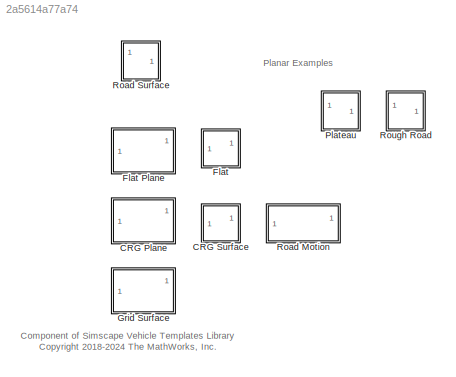
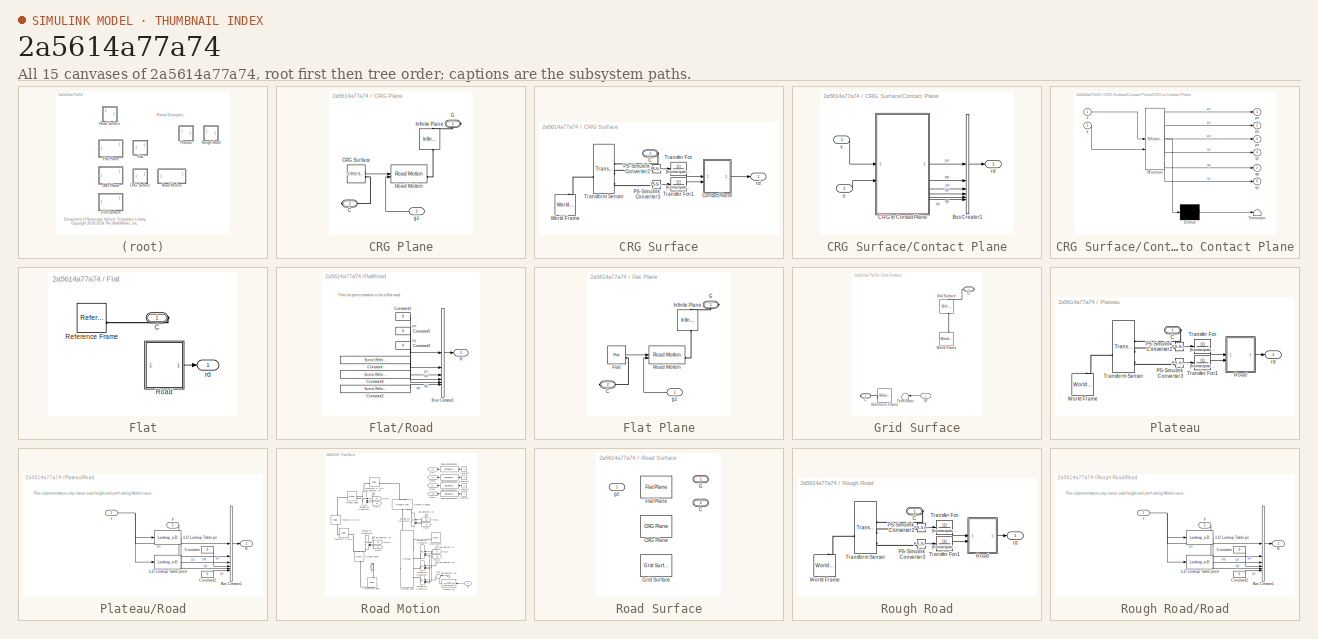
[diagram: thumbnail index - all 15 canvases of the model, root first then tree order]
MODEL slx_2a5614a77a74
KIND library
CONFIG AbsTol = auto
CONFIG EnableMultiTasking = off
CONFIG FixedStep = auto
CONFIG MaxStep = auto
CONFIG MinStep = auto
CONFIG RelTol = 1e-3
CONFIG SampleTimeConstraint = Unconstrained
CONFIG SolverName = VariableStepAuto
CONFIG StartTime = 0.0
CONFIG StopTime = 10.0
BLOCK [SubSystem] CRG Plane
BLOCK [PMIOPort] CRG Plane/C
  Port = 2
  Side = Right
BLOCK [Reference] CRG Plane/CRG Surface  REF=$bdroot/CRG Surface
  SourceBlock = $bdroot/CRG Surface
BLOCK [PMIOPort] CRG Plane/G
  Side = Right
BLOCK [Reference] CRG Plane/Infinite Plane  REF=sm_lib/Curves and Surfaces/Infinite Plane
  NameLocation = left
  SourceBlock = sm_lib/Curves and Surfaces/Infinite Plane
  SourceType = Infinite Plane
BLOCK [Reference] CRG Plane/Road Motion  REF=$bdroot/Road Motion
  SourceBlock = $bdroot/Road Motion
  SourceType = SubSystem
BLOCK [Inport] CRG Plane/gz
BLOCK [SubSystem] CRG Surface
  VariantControl = CRG_Surface
BLOCK [PMIOPort] CRG Surface/C
  Side = Right
BLOCK [SubSystem] CRG Surface/Contact Plane
BLOCK [BusCreator] CRG Surface/Contact Plane/Bus Creator1
  DisplayOption = bar
  InheritFromInputs = on
  Inputs = 6
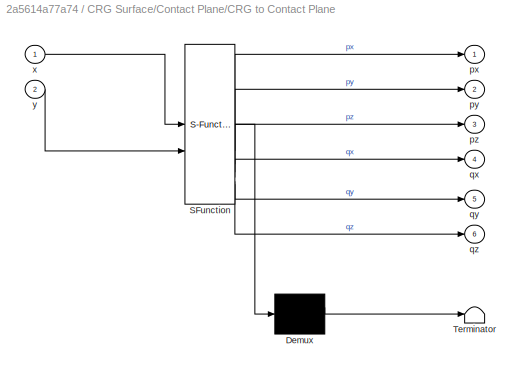
BLOCK [SubSystem] CRG Surface/Contact Plane/CRG to Contact Plane
  ErrorFcn = Stateflow.Translate.translate
  PermitHierarchicalResolution = ExplicitOnly
  SFBlockType = MATLAB Function
  TreatAsAtomicUnit = on
BLOCK [Demux] CRG Surface/Contact Plane/CRG to Contact Plane/ Demux 
  Outputs = 1
BLOCK [S-Function] CRG Surface/Contact Plane/CRG to Contact Plane/ SFunction 
  EnableBusSupport = off
  FunctionName = sf_sfun
  Parameters = crg
  PortCounts = [2 7]
  SFcnIsStateOwnerBlock = off
  SFunctionDeploymentMode = off
  Tag = Stateflow S-Function 3
BLOCK [Terminator] CRG Surface/Contact Plane/CRG to Contact Plane/ Terminator 
BLOCK [Outport] CRG Surface/Contact Plane/CRG to Contact Plane/px
BLOCK [Outport] CRG Surface/Contact Plane/CRG to Contact Plane/py
  Port = 2
BLOCK [Outport] CRG Surface/Contact Plane/CRG to Contact Plane/pz
  Port = 3
BLOCK [Outport] CRG Surface/Contact Plane/CRG to Contact Plane/qx
  Port = 4
BLOCK [Outport] CRG Surface/Contact Plane/CRG to Contact Plane/qy
  Port = 5
BLOCK [Outport] CRG Surface/Contact Plane/CRG to Contact Plane/qz
  Port = 6
BLOCK [Inport] CRG Surface/Contact Plane/CRG to Contact Plane/x
BLOCK [Inport] CRG Surface/Contact Plane/CRG to Contact Plane/y
  Port = 2
BLOCK [Outport] CRG Surface/Contact Plane/rd
BLOCK [Inport] CRG Surface/Contact Plane/x
BLOCK [Inport] CRG Surface/Contact Plane/y
  Port = 2
BLOCK [Reference] CRG Surface/PS-Simulink Converter2  REF=nesl_utility/PS-Simulink
Converter
  SourceBlock = nesl_utility/PS-Simulink\nConverter
  SourceType = PS-Simulink\nConverter
BLOCK [Reference] CRG Surface/PS-Simulink Converter3  REF=nesl_utility/PS-Simulink
Converter
  SourceBlock = nesl_utility/PS-Simulink\nConverter
  SourceType = PS-Simulink\nConverter
BLOCK [TransferFcn] CRG Surface/Transfer Fcn
  Denominator = [fcontactpatch 1]
BLOCK [TransferFcn] CRG Surface/Transfer Fcn1
  Denominator = [fcontactpatch 1]
BLOCK [Reference] CRG Surface/Transform Sensor  REF=sm_lib/Frames and
Transforms/Transform
Sensor
  SourceBlock = sm_lib/Frames and\nTransforms/Transform\nSensor
  SourceType = Transform\nSensor
BLOCK [Reference] CRG Surface/World Frame  REF=sm_lib/Frames and
Transforms/World Frame
  NameLocation = left
  SourceBlock = sm_lib/Frames and\nTransforms/World Frame
  SourceType = World Frame
BLOCK [Outport] CRG Surface/rd
BLOCK [SubSystem] Flat
BLOCK [SubSystem] Flat Plane
BLOCK [PMIOPort] Flat Plane/C
  Port = 2
  Side = Right
BLOCK [Reference] Flat Plane/Flat  REF=$bdroot/Flat
  SourceBlock = $bdroot/Flat
  SourceType = SubSystem
BLOCK [PMIOPort] Flat Plane/G
  Side = Right
BLOCK [Reference] Flat Plane/Infinite Plane  REF=sm_lib/Curves and Surfaces/Infinite Plane
  NameLocation = left
  SourceBlock = sm_lib/Curves and Surfaces/Infinite Plane
  SourceType = Infinite Plane
BLOCK [Reference] Flat Plane/Road Motion  REF=$bdroot/Road Motion
  SourceBlock = $bdroot/Road Motion
  SourceType = SubSystem
BLOCK [Inport] Flat Plane/gz
BLOCK [PMIOPort] Flat/C
  Side = Right
BLOCK [Reference] Flat/Reference Frame  REF=sm_lib/Frames and
Transforms/Reference
Frame
  SourceBlock = sm_lib/Frames and\nTransforms/Reference\nFrame
  SourceType = Reference\nFrame
BLOCK [SubSystem] Flat/Road
BLOCK [BusCreator] Flat/Road/Bus Creator1
  DisplayOption = bar
  InheritFromInputs = on
  Inputs = 6
BLOCK [Constant] Flat/Road/Constant
  Value = Scene.Reference.roll
BLOCK [Constant] Flat/Road/Constant1
  Value = 0
BLOCK [Constant] Flat/Road/Constant2
  Value = Scene.Reference.yaw
BLOCK [Constant] Flat/Road/Constant3
  Value = 0
BLOCK [Constant] Flat/Road/Constant4
  Value = Scene.Reference.pitch
BLOCK [Constant] Flat/Road/Constant5
  Value = 0
BLOCK [Outport] Flat/Road/R
BLOCK [Outport] Flat/rd
BLOCK [SubSystem] Grid Surface
BLOCK [PMIOPort] Grid Surface/C
  Port = 2
  Side = Right
BLOCK [PMIOPort] Grid Surface/G
  Side = Right
BLOCK [Reference] Grid Surface/Grid Surface  REF=sm_lib/Curves and Surfaces/Grid Surface
  NameLocation = right
  SourceBlock = sm_lib/Curves and Surfaces/Grid Surface
  SourceType = Grid Surface
BLOCK [Reference] Grid Surface/Reference Frame  REF=sm_lib/Frames and
Transforms/Reference
Frame
  SourceBlock = sm_lib/Frames and\nTransforms/Reference\nFrame
  SourceType = Reference\nFrame
BLOCK [Terminator] Grid Surface/Terminator
BLOCK [Reference] Grid Surface/World Frame  REF=sm_lib/Frames and
Transforms/World Frame
  NameLocation = right
  SourceBlock = sm_lib/Frames and\nTransforms/World Frame
  SourceType = World Frame
BLOCK [Inport] Grid Surface/gz
BLOCK [SubSystem] Plateau
BLOCK [PMIOPort] Plateau/C
  Side = Right
BLOCK [Reference] Plateau/PS-Simulink Converter2  REF=nesl_utility/PS-Simulink
Converter
  SourceBlock = nesl_utility/PS-Simulink\nConverter
  SourceType = PS-Simulink\nConverter
BLOCK [Reference] Plateau/PS-Simulink Converter3  REF=nesl_utility/PS-Simulink
Converter
  SourceBlock = nesl_utility/PS-Simulink\nConverter
  SourceType = PS-Simulink\nConverter
BLOCK [SubSystem] Plateau/Road
BLOCK [Lookup_n-D] Plateau/Road/1-D Lookup Table pitch
  BreakpointsForDimension1 = SceneData.Plateau.Road.qyLUT.px
  InputPortMap = u0
  InternalRulePriority = Speed
  InterpMethod = Akima spline
  NumberOfTableDimensions = 1
  RndMeth = Simplest
  Table = SceneData.Plateau.Road.qyLUT.qy(:,LRind)
BLOCK [Lookup_n-D] Plateau/Road/1-D Lookup Table pz
  BreakpointsForDimension1 = SceneData.Plateau.Road.pzLUT.px
  InputPortMap = u0
  InternalRulePriority = Speed
  InterpMethod = Akima spline
  NumberOfTableDimensions = 1
  RndMeth = Simplest
  Table = SceneData.Plateau.Road.pzLUT.pz(:,LRind)
BLOCK [BusCreator] Plateau/Road/Bus Creator1
  DisplayOption = bar
  InheritFromInputs = on
  Inputs = 6
BLOCK [Constant] Plateau/Road/Constant
  Value = 0
BLOCK [Constant] Plateau/Road/Constant2
  Value = 0
BLOCK [Outport] Plateau/Road/R
BLOCK [Inport] Plateau/Road/x
BLOCK [Inport] Plateau/Road/y
  Port = 2
BLOCK [TransferFcn] Plateau/Transfer Fcn
  Denominator = [fcontactpatch 1]
BLOCK [TransferFcn] Plateau/Transfer Fcn1
  Denominator = [fcontactpatch 1]
BLOCK [Reference] Plateau/Transform Sensor  REF=sm_lib/Frames and
Transforms/Transform
Sensor
  SourceBlock = sm_lib/Frames and\nTransforms/Transform\nSensor
  SourceType = Transform\nSensor
BLOCK [Reference] Plateau/World Frame  REF=sm_lib/Frames and
Transforms/World Frame
  NameLocation = left
  SourceBlock = sm_lib/Frames and\nTransforms/World Frame
  SourceType = World Frame
BLOCK [Outport] Plateau/rd
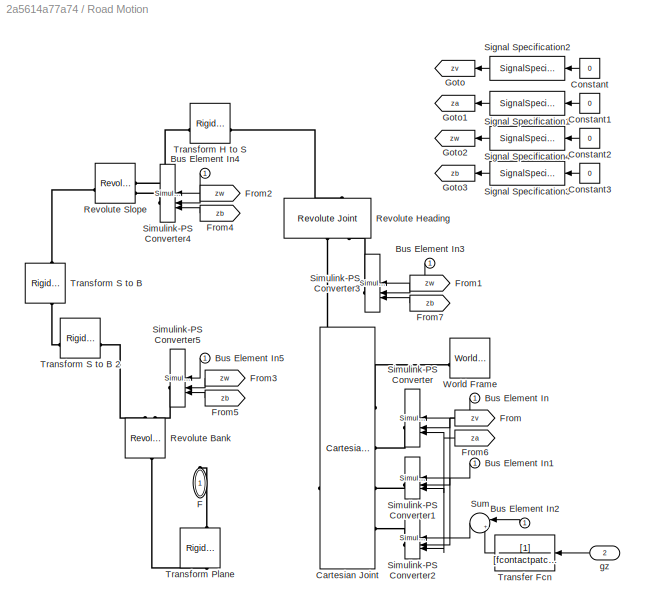
BLOCK [SubSystem] Road Motion
BLOCK [Inport] Road Motion/Bus Element In
BLOCK [Inport] Road Motion/Bus Element In1
BLOCK [Inport] Road Motion/Bus Element In2
BLOCK [Inport] Road Motion/Bus Element In3
BLOCK [Inport] Road Motion/Bus Element In4
BLOCK [Inport] Road Motion/Bus Element In5
BLOCK [Reference] Road Motion/Cartesian Joint  REF=sm_lib/Joints/Cartesian
Joint
  SourceBlock = sm_lib/Joints/Cartesian\nJoint
  SourceType = Cartesian\nJoint
BLOCK [Constant] Road Motion/Constant
  Value = 0
BLOCK [Constant] Road Motion/Constant1
  Value = 0
BLOCK [Constant] Road Motion/Constant2
  Value = 0
BLOCK [Constant] Road Motion/Constant3
  Value = 0
BLOCK [PMIOPort] Road Motion/F
  NameLocation = right
  Side = Right
BLOCK [From] Road Motion/From
  GotoTag = zv
BLOCK [From] Road Motion/From1
  GotoTag = zw
BLOCK [From] Road Motion/From2
  GotoTag = zw
BLOCK [From] Road Motion/From3
  GotoTag = zw
BLOCK [From] Road Motion/From4
  GotoTag = zb
BLOCK [From] Road Motion/From5
  GotoTag = zb
BLOCK [From] Road Motion/From6
  GotoTag = za
BLOCK [From] Road Motion/From7
  GotoTag = zb
BLOCK [Goto] Road Motion/Goto
  GotoTag = zv
  NameLocation = top
BLOCK [Goto] Road Motion/Goto1
  GotoTag = za
  NameLocation = top
BLOCK [Goto] Road Motion/Goto2
  GotoTag = zw
  NameLocation = top
BLOCK [Goto] Road Motion/Goto3
  GotoTag = zb
  NameLocation = top
BLOCK [Reference] Road Motion/Revolute Bank  REF=sm_lib/Joints/Revolute Joint
  NameLocation = left
  SourceBlock = sm_lib/Joints/Revolute Joint
  SourceType = Revolute Joint
BLOCK [Reference] Road Motion/Revolute Heading  REF=sm_lib/Joints/Revolute Joint
  NameLocation = right
  SourceBlock = sm_lib/Joints/Revolute Joint
  SourceType = Revolute Joint
BLOCK [Reference] Road Motion/Revolute Slope  REF=sm_lib/Joints/Revolute Joint
  SourceBlock = sm_lib/Joints/Revolute Joint
  SourceType = Revolute Joint
BLOCK [SignalSpecification] Road Motion/Signal Specification1
  Unit = m/s^2
BLOCK [SignalSpecification] Road Motion/Signal Specification2
  Unit = m/s
BLOCK [SignalSpecification] Road Motion/Signal Specification3
  Unit = rad/s^2
BLOCK [SignalSpecification] Road Motion/Signal Specification4
  Unit = rad/s
BLOCK [Reference] Road Motion/Simulink-PS Converter  REF=nesl_utility/Simulink-PS
Converter
  SourceBlock = nesl_utility/Simulink-PS\nConverter
  SourceType = Simulink-PS\nConverter
BLOCK [Reference] Road Motion/Simulink-PS Converter1  REF=nesl_utility/Simulink-PS
Converter
  SourceBlock = nesl_utility/Simulink-PS\nConverter
  SourceType = Simulink-PS\nConverter
BLOCK [Reference] Road Motion/Simulink-PS Converter2  REF=nesl_utility/Simulink-PS
Converter
  SourceBlock = nesl_utility/Simulink-PS\nConverter
  SourceType = Simulink-PS\nConverter
BLOCK [Reference] Road Motion/Simulink-PS Converter3  REF=nesl_utility/Simulink-PS
Converter
  NameLocation = top
  SourceBlock = nesl_utility/Simulink-PS\nConverter
  SourceType = Simulink-PS\nConverter
BLOCK [Reference] Road Motion/Simulink-PS Converter4  REF=nesl_utility/Simulink-PS
Converter
  SourceBlock = nesl_utility/Simulink-PS\nConverter
  SourceType = Simulink-PS\nConverter
BLOCK [Reference] Road Motion/Simulink-PS Converter5  REF=nesl_utility/Simulink-PS
Converter
  SourceBlock = nesl_utility/Simulink-PS\nConverter
  SourceType = Simulink-PS\nConverter
BLOCK [Sum] Road Motion/Sum
  Inputs = |++
BLOCK [TransferFcn] Road Motion/Transfer Fcn
  Denominator = [fcontactpatch 1]
BLOCK [Reference] Road Motion/Transform H to S  REF=sm_lib/Frames and
Transforms/Rigid
Transform
  NameLocation = top
  SourceBlock = sm_lib/Frames and\nTransforms/Rigid\nTransform
  SourceType = Rigid\nTransform
BLOCK [Reference] Road Motion/Transform Plane  REF=sm_lib/Frames and
Transforms/Rigid
Transform
  NameLocation = right
  SourceBlock = sm_lib/Frames and\nTransforms/Rigid\nTransform
  SourceType = Rigid\nTransform
BLOCK [Reference] Road Motion/Transform S to B  REF=sm_lib/Frames and
Transforms/Rigid
Transform
  NameLocation = right
  SourceBlock = sm_lib/Frames and\nTransforms/Rigid\nTransform
  SourceType = Rigid\nTransform
BLOCK [Reference] Road Motion/Transform S to B 2  REF=sm_lib/Frames and
Transforms/Rigid
Transform
  SourceBlock = sm_lib/Frames and\nTransforms/Rigid\nTransform
  SourceType = Rigid\nTransform
BLOCK [Reference] Road Motion/World Frame  REF=sm_lib/Frames and
Transforms/World Frame
  NameLocation = top
  SourceBlock = sm_lib/Frames and\nTransforms/World Frame
  SourceType = World Frame
BLOCK [Inport] Road Motion/gz
  Port = 2
BLOCK [SubSystem] Road Surface
  AttributesFormatString = %<LabelModeActiveChoice>
  LabelModeActiveChoice = CRG_Plane
  Variant = on
  VariantControl = Choice
  VariantControlMode = label
BLOCK [PMIOPort] Road Surface/C
  Port = 2
  Side = Right
BLOCK [Reference] Road Surface/CRG Plane  REF=$bdroot/CRG Plane
  SourceBlock = $bdroot/CRG Plane
  SourceType = SubSystem
BLOCK [Reference] Road Surface/Flat Plane  REF=$bdroot/Flat Plane
  SourceBlock = $bdroot/Flat Plane
  SourceType = SubSystem
BLOCK [PMIOPort] Road Surface/G
  Side = Right
BLOCK [Reference] Road Surface/Grid Surface  REF=$bdroot/Grid Surface
  SourceBlock = $bdroot/Grid Surface
BLOCK [Inport] Road Surface/gz
BLOCK [SubSystem] Rough Road
BLOCK [PMIOPort] Rough Road/C
  Side = Right
BLOCK [Reference] Rough Road/PS-Simulink Converter2  REF=nesl_utility/PS-Simulink
Converter
  SourceBlock = nesl_utility/PS-Simulink\nConverter
  SourceType = PS-Simulink\nConverter
BLOCK [Reference] Rough Road/PS-Simulink Converter3  REF=nesl_utility/PS-Simulink
Converter
  SourceBlock = nesl_utility/PS-Simulink\nConverter
  SourceType = PS-Simulink\nConverter
BLOCK [SubSystem] Rough Road/Road
BLOCK [Lookup_n-D] Rough Road/Road/1-D Lookup Table pitch
  BreakpointsForDimension1 = SceneData.Rough_Road.Road.qyLUT.px
  InputPortMap = u0
  InternalRulePriority = Speed
  InterpMethod = Akima spline
  NumberOfTableDimensions = 1
  RndMeth = Simplest
  Table = SceneData.Rough_Road.Road.qyLUT.qy(:,LRind)
BLOCK [Lookup_n-D] Rough Road/Road/1-D Lookup Table pz
  BreakpointsForDimension1 = SceneData.Rough_Road.Road.pzLUT.px
  InputPortMap = u0
  InternalRulePriority = Speed
  InterpMethod = Akima spline
  NumberOfTableDimensions = 1
  RndMeth = Simplest
  Table = SceneData.Rough_Road.Road.pzLUT.pz(:,LRind)
BLOCK [BusCreator] Rough Road/Road/Bus Creator1
  DisplayOption = bar
  InheritFromInputs = on
  Inputs = 6
BLOCK [Constant] Rough Road/Road/Constant
  Value = 0
BLOCK [Constant] Rough Road/Road/Constant2
  Value = 0
BLOCK [Outport] Rough Road/Road/R
BLOCK [Inport] Rough Road/Road/x
BLOCK [Inport] Rough Road/Road/y
  Port = 2
BLOCK [TransferFcn] Rough Road/Transfer Fcn
  Denominator = [fcontactpatch 1]
BLOCK [TransferFcn] Rough Road/Transfer Fcn1
  Denominator = [fcontactpatch 1]
BLOCK [Reference] Rough Road/Transform Sensor  REF=sm_lib/Frames and
Transforms/Transform
Sensor
  SourceBlock = sm_lib/Frames and\nTransforms/Transform\nSensor
  SourceType = Transform\nSensor
BLOCK [Reference] Rough Road/World Frame  REF=sm_lib/Frames and
Transforms/World Frame
  NameLocation = left
  SourceBlock = sm_lib/Frames and\nTransforms/World Frame
  SourceType = World Frame
BLOCK [Outport] Rough Road/rd
ANNOTATION (root): Component of Simscape Vehicle Templates Library <copyright redacted>
ANNOTATION (root): Planar Examples
ANNOTATION Flat/Road: This implementation is for a flat road
ANNOTATION Plateau/Road: This implementation only varies road height and pitch along World x-axis.
ANNOTATION Rough Road/Road: This implementation only varies road height and pitch along World x-axis.
LINE CRG Plane/CRG Surface:1 -> CRG Plane/Road Motion:1
LINE CRG Plane/gz:1 -> CRG Plane/Road Motion:2
LINE Flat Plane/Flat:1 -> Flat Plane/Road Motion:1
LINE Flat Plane/gz:1 -> Flat Plane/Road Motion:2
LINE Flat/Road/Bus Creator1:1 -> Flat/Road/R:1
LINE Flat/Road/Constant1:1 -> Flat/Road/Bus Creator1:1
LINE Flat/Road/Constant2:1 -> Flat/Road/Bus Creator1:6
LINE Flat/Road/Constant3:1 -> Flat/Road/Bus Creator1:3
LINE Flat/Road/Constant4:1 -> Flat/Road/Bus Creator1:5
LINE Flat/Road/Constant5:1 -> Flat/Road/Bus Creator1:2
LINE Flat/Road/Constant:1 -> Flat/Road/Bus Creator1:4
LINE Flat/Road:1 -> Flat/rd:1
LINE Plateau/PS-Simulink Converter2:1 -> Plateau/Transfer Fcn:1
LINE Plateau/PS-Simulink Converter3:1 -> Plateau/Transfer Fcn1:1
LINE Plateau/Road/1-D Lookup Table pitch:1 -> Plateau/Road/Bus Creator1:5
LINE Plateau/Road/1-D Lookup Table pz:1 -> Plateau/Road/Bus Creator1:3
LINE Plateau/Road/Bus Creator1:1 -> Plateau/Road/R:1
LINE Plateau/Road/Constant2:1 -> Plateau/Road/Bus Creator1:6
LINE Plateau/Road/Constant:1 -> Plateau/Road/Bus Creator1:4
NET Plateau/Road/x:1 -> Plateau/Road/1-D Lookup Table pitch:1, Plateau/Road/1-D Lookup Table pz:1, Plateau/Road/Bus Creator1:1
LINE Plateau/Road/y:1 -> Plateau/Road/Bus Creator1:2
LINE Plateau/Road:1 -> Plateau/rd:1
LINE Plateau/Transfer Fcn1:1 -> Plateau/Road:2
LINE Plateau/Transfer Fcn:1 -> Plateau/Road:1
LINE Road Motion/Bus Element In1:1 -> Road Motion/Simulink-PS Converter1:1
LINE Road Motion/Bus Element In2:1 -> Road Motion/Sum:1
LINE Road Motion/Bus Element In3:1 -> Road Motion/Simulink-PS Converter3:1
LINE Road Motion/Bus Element In4:1 -> Road Motion/Simulink-PS Converter4:1
LINE Road Motion/Bus Element In5:1 -> Road Motion/Simulink-PS Converter5:1
LINE Road Motion/Bus Element In:1 -> Road Motion/Simulink-PS Converter:1
LINE Road Motion/Constant1:1 -> Road Motion/Signal Specification1:1
LINE Road Motion/Constant2:1 -> Road Motion/Signal Specification4:1
LINE Road Motion/Constant3:1 -> Road Motion/Signal Specification3:1
LINE Road Motion/Constant:1 -> Road Motion/Signal Specification2:1
LINE Road Motion/From1:1 -> Road Motion/Simulink-PS Converter3:2
LINE Road Motion/From2:1 -> Road Motion/Simulink-PS Converter4:2
LINE Road Motion/From3:1 -> Road Motion/Simulink-PS Converter5:2
LINE Road Motion/From4:1 -> Road Motion/Simulink-PS Converter4:3
LINE Road Motion/From5:1 -> Road Motion/Simulink-PS Converter5:3
NET Road Motion/From6:1 -> Road Motion/Simulink-PS Converter1:3, Road Motion/Simulink-PS Converter2:3, Road Motion/Simulink-PS Converter:3
LINE Road Motion/From7:1 -> Road Motion/Simulink-PS Converter3:3
NET Road Motion/From:1 -> Road Motion/Simulink-PS Converter1:2, Road Motion/Simulink-PS Converter2:2, Road Motion/Simulink-PS Converter:2
LINE Road Motion/Signal Specification1:1 -> Road Motion/Goto1:1
LINE Road Motion/Signal Specification2:1 -> Road Motion/Goto:1
LINE Road Motion/Signal Specification3:1 -> Road Motion/Goto3:1
LINE Road Motion/Signal Specification4:1 -> Road Motion/Goto2:1
LINE Road Motion/Sum:1 -> Road Motion/Simulink-PS Converter2:1
LINE Road Motion/Transfer Fcn:1 -> Road Motion/Sum:2
LINE Road Motion/gz:1 -> Road Motion/Transfer Fcn:1
LINE Rough Road/PS-Simulink Converter2:1 -> Rough Road/Transfer Fcn:1
LINE Rough Road/PS-Simulink Converter3:1 -> Rough Road/Transfer Fcn1:1
LINE Rough Road/Road/1-D Lookup Table pitch:1 -> Rough Road/Road/Bus Creator1:5
LINE Rough Road/Road/1-D Lookup Table pz:1 -> Rough Road/Road/Bus Creator1:3
LINE Rough Road/Road/Bus Creator1:1 -> Rough Road/Road/R:1
LINE Rough Road/Road/Constant2:1 -> Rough Road/Road/Bus Creator1:6
LINE Rough Road/Road/Constant:1 -> Rough Road/Road/Bus Creator1:4
NET Rough Road/Road/x:1 -> Rough Road/Road/1-D Lookup Table pitch:1, Rough Road/Road/1-D Lookup Table pz:1, Rough Road/Road/Bus Creator1:1
LINE Rough Road/Road/y:1 -> Rough Road/Road/Bus Creator1:2
LINE Rough Road/Road:1 -> Rough Road/rd:1
LINE Rough Road/Transfer Fcn1:1 -> Rough Road/Road:2
LINE Rough Road/Transfer Fcn:1 -> Rough Road/Road:1
PLINE CRG Plane/C:RConn1 -- CRG Plane/CRG Surface:RConn1
PLINE CRG Plane/G:RConn1 -- CRG Plane/Infinite Plane:RConn1
PLINE CRG Plane/Infinite Plane:LConn1 -- CRG Plane/Road Motion:RConn1
PLINE Flat Plane/C:RConn1 -- Flat Plane/Flat:RConn1
PLINE Flat Plane/G:RConn1 -- Flat Plane/Infinite Plane:RConn1
PLINE Flat Plane/Infinite Plane:LConn1 -- Flat Plane/Road Motion:RConn1
PLINE Flat/C:RConn1 -- Flat/Reference Frame:RConn1
PLINE Plateau/C:RConn1 -- Plateau/Transform Sensor:RConn1
PLINE Plateau/PS-Simulink Converter2:LConn1 -- Plateau/Transform Sensor:RConn2
PLINE Plateau/PS-Simulink Converter3:LConn1 -- Plateau/Transform Sensor:RConn3
PLINE Plateau/Transform Sensor:LConn1 -- Plateau/World Frame:RConn1
PLINE Road Motion/Cartesian Joint:LConn1 -- Road Motion/World Frame:RConn1
PLINE Road Motion/Cartesian Joint:LConn2 -- Road Motion/Simulink-PS Converter:RConn1
PLINE Road Motion/Cartesian Joint:LConn3 -- Road Motion/Simulink-PS Converter1:RConn1
PLINE Road Motion/Cartesian Joint:LConn4 -- Road Motion/Simulink-PS Converter2:RConn1
PLINE Road Motion/Cartesian Joint:RConn1 -- Road Motion/Revolute Heading:LConn1
PLINE Road Motion/F:RConn1 -- Road Motion/Transform Plane:RConn1
PLINE Road Motion/Revolute Bank:LConn1 -- Road Motion/Transform S to B 2:RConn1
PLINE Road Motion/Revolute Bank:LConn2 -- Road Motion/Simulink-PS Converter5:RConn1
PLINE Road Motion/Revolute Bank:RConn1 -- Road Motion/Transform Plane:LConn1
PLINE Road Motion/Revolute Heading:LConn2 -- Road Motion/Simulink-PS Converter3:RConn1
PLINE Road Motion/Revolute Heading:RConn1 -- Road Motion/Transform H to S:LConn1
PLINE Road Motion/Revolute Slope:LConn1 -- Road Motion/Transform H to S:RConn1
PLINE Road Motion/Revolute Slope:LConn2 -- Road Motion/Simulink-PS Converter4:RConn1
PLINE Road Motion/Revolute Slope:RConn1 -- Road Motion/Transform S to B:LConn1
PLINE Road Motion/Transform S to B 2:LConn1 -- Road Motion/Transform S to B:RConn1
PLINE Rough Road/C:RConn1 -- Rough Road/Transform Sensor:RConn1
PLINE Rough Road/PS-Simulink Converter2:LConn1 -- Rough Road/Transform Sensor:RConn2
PLINE Rough Road/PS-Simulink Converter3:LConn1 -- Rough Road/Transform Sensor:RConn3
PLINE Rough Road/Transform Sensor:LConn1 -- Rough Road/World Frame:RConn1
note: NET lines group one-source signal fan-out (src -> all destinations, sorted); 1:1 wires keep LINE
CHART CRG Surface/Contact Plane/CRG to Contact Plane states=1 transitions=1
  STATE_LABEL 'eML_blk_kernel()'
  STATE_LABEL 'SCRIPT:\nfunction [px, py, pz, qx, qy, qz] = fcn(x, y, crg)\n\n% Assign default values for all quantities\npx = x;\npy = y;\npz = 0.0;\nqx = 0.0;\nqy = 0.0;\nqz = 0.0;\n\n% Use x-y position information to get\n% u-v position in curved regular grid\npxy = [x, y];\n[puv, crg] = crg_eval_xy2uv_codegen(crg, pxy);\n\n%% Contact point height \n% Option one, obtain point\n[pz, crg] = crg_eval_uv2z_codegen(crg, puv);\n\n% Op...<+1359ch>'
CHART  states=0 transitions=0
